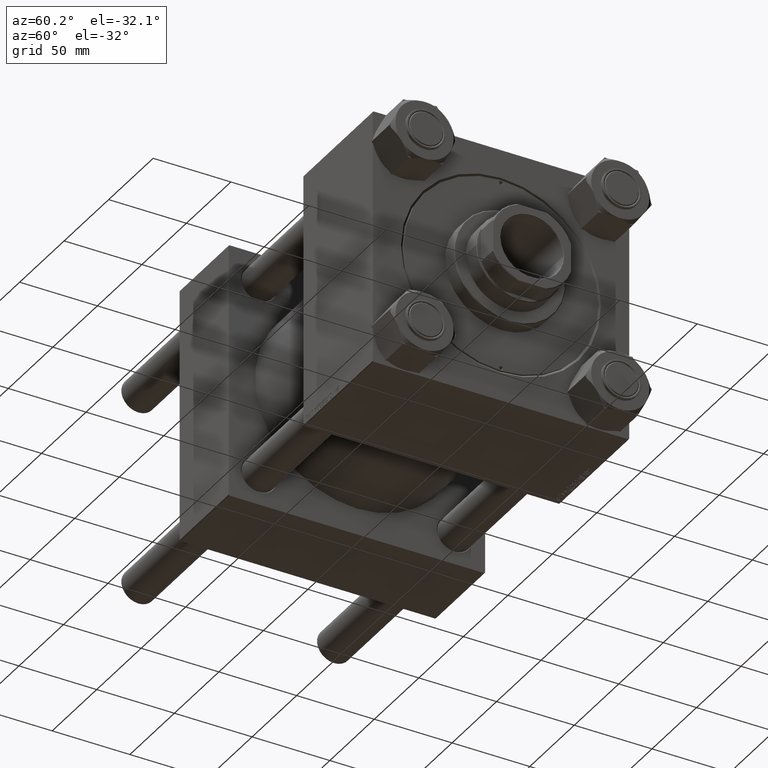
[diagram: clean part render]
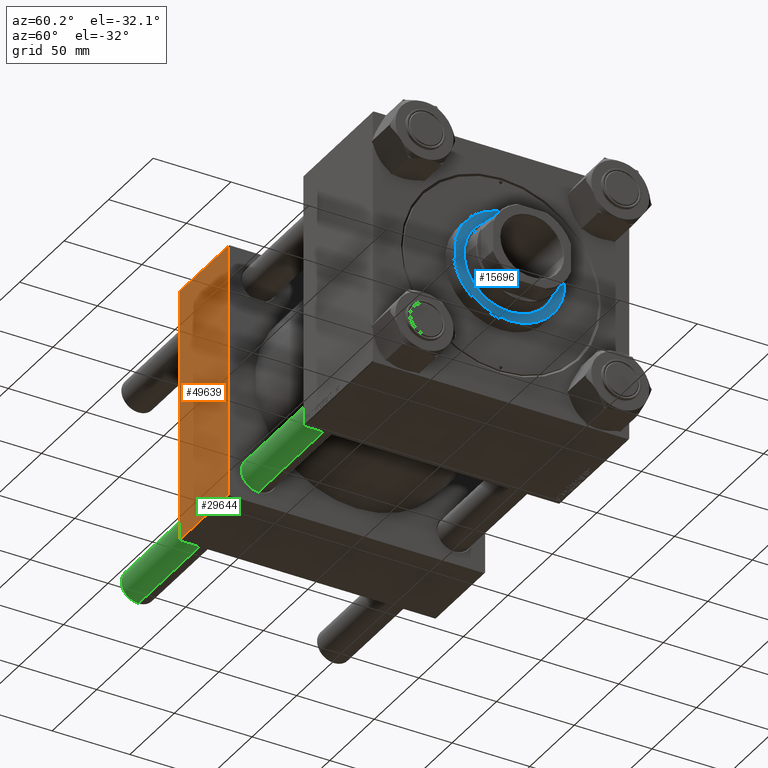
[diagram: same view with three faces highlighted in distinct colors, each labeled with its STEP entity id]
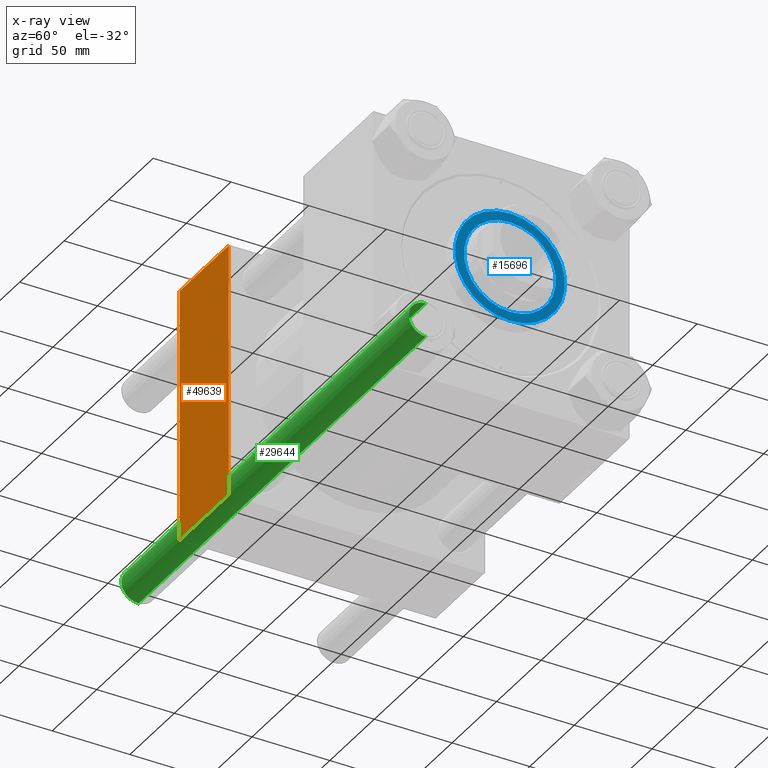
[diagram: x-ray of the same camera — body ghosted, the three highlighted faces saturated]
A machine part, auxiliary view with three faces highlighted in distinct colors.
The next image is the same camera in x-ray (body ghosted, the three faces saturated) — at least one of them is partly hidden behind the body in this view.
Their STEP definitions:

[orange] entity #49639 — the highlighted planar face has unit normal (0, 1, -0).
#900 = EDGE_CURVE ( 'NONE', #41479, #36332, #29673, .T. ) ;
#3467 = DIRECTION ( 'NONE',  ( 0.000000000000000000, -1.682156097916903588E-16, -1.000000000000000000 ) ) ;
#4514 = VECTOR ( 'NONE', #45912, 1000.000000000000000 ) ;
#6344 = VECTOR ( 'NONE', #3467, 1000.000000000000000 ) ;
#7146 = EDGE_CURVE ( 'NONE', #36332, #40666, #29185, .T. ) ;
#7786 = ORIENTED_EDGE ( 'NONE', *, *, #14385, .T. ) ;
#7991 = VECTOR ( 'NONE', #10289, 1000.000000000000000 ) ;
#8212 = VERTEX_POINT ( 'NONE', #45058 ) ;
#10289 = DIRECTION ( 'NONE',  ( -1.000000000000000000, 0.000000000000000000, 0.000000000000000000 ) ) ;
#10485 = FACE_OUTER_BOUND ( 'NONE', #26380, .T. ) ;
#10732 = DIRECTION ( 'NONE',  ( 0.000000000000000000, 1.682156097916903588E-16, 1.000000000000000000 ) ) ;
#13221 = ORIENTED_EDGE ( 'NONE', *, *, #24376, .F. ) ;
#14385 = EDGE_CURVE ( 'NONE', #40666, #8212, #37732, .T. ) ;
#14558 = CARTESIAN_POINT ( 'NONE',  ( 55.00000000000000000, -82.49999999999997158, 82.50000000000001421 ) ) ;
#14942 = ORIENTED_EDGE ( 'NONE', *, *, #7146, .T. ) ;
#16197 = CARTESIAN_POINT ( 'NONE',  ( 55.00000000000000000, -82.49999999999997158, 82.00000000000001421 ) ) ;
#18486 = LINE ( 'NONE', #30749, #6344 ) ;
#24376 = EDGE_CURVE ( 'NONE', #41479, #8212, #18486, .T. ) ;
#25576 = AXIS2_PLACEMENT_3D ( 'NONE', #14558, #46442, #10732 ) ;
#26380 = EDGE_LOOP ( 'NONE', ( #14942, #7786, #13221, #38951 ) ) ;
#26643 = CARTESIAN_POINT ( 'NONE',  ( 0.000000000000000000, -82.49999999999997158, 82.00000000000001421 ) ) ;
#29185 = LINE ( 'NONE', #32269, #44962 ) ;
#29673 = LINE ( 'NONE', #45234, #7991 ) ;
#30348 = CARTESIAN_POINT ( 'NONE',  ( 55.00000000000000000, -82.50000000000000000, -81.99999999999998579 ) ) ;
#30749 = CARTESIAN_POINT ( 'NONE',  ( 55.00000000000000000, -82.49999999999997158, 82.50000000000001421 ) ) ;
#32269 = CARTESIAN_POINT ( 'NONE',  ( 0.000000000000000000, -82.49999999999997158, 82.50000000000001421 ) ) ;
#36332 = VERTEX_POINT ( 'NONE', #26643 ) ;
#36586 = DIRECTION ( 'NONE',  ( 0.000000000000000000, -1.682156097916903588E-16, -1.000000000000000000 ) ) ;
#37732 = LINE ( 'NONE', #30348, #4514 ) ;
#38951 = ORIENTED_EDGE ( 'NONE', *, *, #900, .T. ) ;
#40666 = VERTEX_POINT ( 'NONE', #47842 ) ;
#41479 = VERTEX_POINT ( 'NONE', #16197 ) ;
#44962 = VECTOR ( 'NONE', #36586, 1000.000000000000000 ) ;
#45058 = CARTESIAN_POINT ( 'NONE',  ( 55.00000000000000000, -82.50000000000000000, -81.99999999999998579 ) ) ;
#45234 = CARTESIAN_POINT ( 'NONE',  ( 55.00000000000000000, -82.49999999999997158, 82.00000000000001421 ) ) ;
#45912 = DIRECTION ( 'NONE',  ( 1.000000000000000000, 0.000000000000000000, 0.000000000000000000 ) ) ;
#46195 = PLANE ( 'NONE',  #25576 ) ;
#46442 = DIRECTION ( 'NONE',  ( 0.000000000000000000, 1.000000000000000000, -1.682156097916903588E-16 ) ) ;
#47842 = CARTESIAN_POINT ( 'NONE',  ( 0.000000000000000000, -82.50000000000000000, -81.99999999999998579 ) ) ;
#49639 = ADVANCED_FACE ( 'NONE', ( #10485 ), #46195, .F. ) ;

[blue] entity #15696 — the highlighted planar face has unit normal (1, 0, -0).
#502 = EDGE_CURVE ( 'NONE', #49325, #30144, #620, .T. ) ;
#620 = CIRCLE ( 'NONE', #42973, 35.50000000000000711 ) ;
#730 = CARTESIAN_POINT ( 'NONE',  ( -29.50000000000000355, 3.612708057484692393E-15, 38.69999999999999574 ) ) ;
#2428 = DIRECTION ( 'NONE',  ( 1.000000000000000000, 0.000000000000000000, 0.000000000000000000 ) ) ;
#5099 = CIRCLE ( 'NONE', #37658, 29.50000000000000355 ) ;
#6126 = FACE_BOUND ( 'NONE', #17995, .T. ) ;
#6727 = CARTESIAN_POINT ( 'NONE',  ( -35.50000000000000711, 0.000000000000000000, 38.69999999999999574 ) ) ;
#8206 = EDGE_LOOP ( 'NONE', ( #41660, #38160 ) ) ;
#8227 = EDGE_CURVE ( 'NONE', #23389, #27684, #5099, .T. ) ;
#10312 = DIRECTION ( 'NONE',  ( 1.000000000000000000, 0.000000000000000000, 0.000000000000000000 ) ) ;
#11397 = CARTESIAN_POINT ( 'NONE',  ( 35.50000000000000711, 4.378112306951787069E-15, 38.69999999999999574 ) ) ;
#14370 = ORIENTED_EDGE ( 'NONE', *, *, #42723, .F. ) ;
#15696 = ADVANCED_FACE ( 'NONE', ( #6126, #29839 ), #21150, .T. ) ;
#15792 = CARTESIAN_POINT ( 'NONE',  ( 29.50000000000000355, 0.000000000000000000, 38.69999999999999574 ) ) ;
#16259 = AXIS2_PLACEMENT_3D ( 'NONE', #33523, #45259, #10312 ) ;
#17083 = DIRECTION ( 'NONE',  ( 0.000000000000000000, 0.000000000000000000, 1.000000000000000000 ) ) ;
#17991 = DIRECTION ( 'NONE',  ( 0.000000000000000000, 0.000000000000000000, 1.000000000000000000 ) ) ;
#17995 = EDGE_LOOP ( 'NONE', ( #28646, #14370 ) ) ;
#18650 = DIRECTION ( 'NONE',  ( 1.000000000000000000, 0.000000000000000000, 0.000000000000000000 ) ) ;
#21150 = PLANE ( 'NONE',  #45249 ) ;
#23389 = VERTEX_POINT ( 'NONE', #15792 ) ;
#23607 = CIRCLE ( 'NONE', #16259, 35.50000000000000711 ) ;
#24892 = DIRECTION ( 'NONE',  ( 0.000000000000000000, 0.000000000000000000, 1.000000000000000000 ) ) ;
#27684 = VERTEX_POINT ( 'NONE', #730 ) ;
#28646 = ORIENTED_EDGE ( 'NONE', *, *, #8227, .F. ) ;
#29839 = FACE_OUTER_BOUND ( 'NONE', #8206, .T. ) ;
#30144 = VERTEX_POINT ( 'NONE', #11397 ) ;
#33523 = CARTESIAN_POINT ( 'NONE',  ( 0.000000000000000000, 0.000000000000000000, 38.69999999999999574 ) ) ;
#35627 = EDGE_CURVE ( 'NONE', #30144, #49325, #23607, .T. ) ;
#36650 = CARTESIAN_POINT ( 'NONE',  ( 0.000000000000000000, 0.000000000000000000, 38.69999999999999574 ) ) ;
#37229 = CARTESIAN_POINT ( 'NONE',  ( 0.000000000000000000, 0.000000000000000000, 38.69999999999999574 ) ) ;
#37479 = DIRECTION ( 'NONE',  ( 1.000000000000000000, 0.000000000000000000, -0.000000000000000000 ) ) ;
#37646 = DIRECTION ( 'NONE',  ( 1.000000000000000000, 0.000000000000000000, 0.000000000000000000 ) ) ;
#37658 = AXIS2_PLACEMENT_3D ( 'NONE', #36650, #17991, #37646 ) ;
#38160 = ORIENTED_EDGE ( 'NONE', *, *, #35627, .T. ) ;
#40875 = CARTESIAN_POINT ( 'NONE',  ( 0.000000000000000000, 0.000000000000000000, 38.69999999999999574 ) ) ;
#40949 = AXIS2_PLACEMENT_3D ( 'NONE', #40875, #48808, #18650 ) ;
#41660 = ORIENTED_EDGE ( 'NONE', *, *, #502, .T. ) ;
#42723 = EDGE_CURVE ( 'NONE', #27684, #23389, #47487, .T. ) ;
#42973 = AXIS2_PLACEMENT_3D ( 'NONE', #45295, #24892, #2428 ) ;
#45249 = AXIS2_PLACEMENT_3D ( 'NONE', #37229, #17083, #37479 ) ;
#45259 = DIRECTION ( 'NONE',  ( 0.000000000000000000, 0.000000000000000000, 1.000000000000000000 ) ) ;
#45295 = CARTESIAN_POINT ( 'NONE',  ( 0.000000000000000000, 0.000000000000000000, 38.69999999999999574 ) ) ;
#47487 = CIRCLE ( 'NONE', #40949, 29.50000000000000355 ) ;
#48808 = DIRECTION ( 'NONE',  ( 0.000000000000000000, 0.000000000000000000, 1.000000000000000000 ) ) ;
#49325 = VERTEX_POINT ( 'NONE', #6727 ) ;

[green] entity #29644 — the highlighted cylindrical surface (edge-blend (fillet) strip) has radius 11 mm, axis along (-1, 0, 0).
#792 = DIRECTION ( 'NONE',  ( -0.000000000000000000, -0.000000000000000000, -1.000000000000000000 ) ) ;
#1861 = EDGE_LOOP ( 'NONE', ( #35760, #3143, #22484, #1965 ) ) ;
#1965 = ORIENTED_EDGE ( 'NONE', *, *, #27342, .F. ) ;
#3143 = ORIENTED_EDGE ( 'NONE', *, *, #33461, .T. ) ;
#7252 = CARTESIAN_POINT ( 'NONE',  ( 11.00000000000000000, 1.347111479062088405E-15, 324.0000000000000000 ) ) ;
#8137 = CARTESIAN_POINT ( 'NONE',  ( 11.00000000000000000, 1.347111479062088405E-15, 323.5000000000000000 ) ) ;
#8692 = CIRCLE ( 'NONE', #43716, 11.00000000000000000 ) ;
#9257 = EDGE_CURVE ( 'NONE', #24760, #49655, #35270, .T. ) ;
#10790 = CARTESIAN_POINT ( 'NONE',  ( 11.00000000000000000, 1.347111479062088405E-15, 0.5000000000000559552 ) ) ;
#11476 = CARTESIAN_POINT ( 'NONE',  ( -11.00000000000000000, 0.000000000000000000, 0.5000000000000559552 ) ) ;
#14157 = CARTESIAN_POINT ( 'NONE',  ( 0.000000000000000000, 0.000000000000000000, 323.5000000000000000 ) ) ;
#18126 = AXIS2_PLACEMENT_3D ( 'NONE', #24604, #32531, #21015 ) ;
#18213 = DIRECTION ( 'NONE',  ( 0.000000000000000000, 0.000000000000000000, -1.000000000000000000 ) ) ;
#20912 = CARTESIAN_POINT ( 'NONE',  ( -11.00000000000000000, 0.000000000000000000, 324.0000000000000000 ) ) ;
#21015 = DIRECTION ( 'NONE',  ( 1.000000000000000000, 0.000000000000000000, 0.000000000000000000 ) ) ;
#21841 = EDGE_CURVE ( 'NONE', #46777, #44905, #8692, .T. ) ;
#22484 = ORIENTED_EDGE ( 'NONE', *, *, #9257, .T. ) ;
#24499 = CARTESIAN_POINT ( 'NONE',  ( 0.000000000000000000, 0.000000000000000000, 324.0000000000000000 ) ) ;
#24604 = CARTESIAN_POINT ( 'NONE',  ( 0.000000000000000000, 0.000000000000000000, 0.5000000000000559552 ) ) ;
#24760 = VERTEX_POINT ( 'NONE', #10790 ) ;
#26637 = LINE ( 'NONE', #7252, #40775 ) ;
#26779 = VECTOR ( 'NONE', #792, 1000.000000000000000 ) ;
#27342 = EDGE_CURVE ( 'NONE', #46777, #49655, #32675, .T. ) ;
#28347 = DIRECTION ( 'NONE',  ( -0.000000000000000000, -0.000000000000000000, -1.000000000000000000 ) ) ;
#28788 = CARTESIAN_POINT ( 'NONE',  ( -11.00000000000000000, 0.000000000000000000, 323.5000000000000000 ) ) ;
#29644 = ADVANCED_FACE ( 'NONE', ( #39819 ), #32183, .T. ) ;
#32183 = CYLINDRICAL_SURFACE ( 'NONE', #47248, 11.00000000000000000 ) ;
#32531 = DIRECTION ( 'NONE',  ( -0.000000000000000000, -0.000000000000000000, 1.000000000000000000 ) ) ;
#32675 = LINE ( 'NONE', #20912, #26779 ) ;
#33461 = EDGE_CURVE ( 'NONE', #44905, #24760, #26637, .T. ) ;
#33932 = DIRECTION ( 'NONE',  ( -1.000000000000000000, 0.000000000000000000, 0.000000000000000000 ) ) ;
#35270 = CIRCLE ( 'NONE', #18126, 11.00000000000000000 ) ;
#35760 = ORIENTED_EDGE ( 'NONE', *, *, #21841, .T. ) ;
#38352 = DIRECTION ( 'NONE',  ( -0.000000000000000000, -0.000000000000000000, -1.000000000000000000 ) ) ;
#38371 = DIRECTION ( 'NONE',  ( 1.000000000000000000, 0.000000000000000000, 0.000000000000000000 ) ) ;
#39819 = FACE_OUTER_BOUND ( 'NONE', #1861, .T. ) ;
#40775 = VECTOR ( 'NONE', #38352, 1000.000000000000000 ) ;
#43716 = AXIS2_PLACEMENT_3D ( 'NONE', #14157, #18213, #38371 ) ;
#44905 = VERTEX_POINT ( 'NONE', #8137 ) ;
#46777 = VERTEX_POINT ( 'NONE', #28788 ) ;
#47248 = AXIS2_PLACEMENT_3D ( 'NONE', #24499, #28347, #33932 ) ;
#49655 = VERTEX_POINT ( 'NONE', #11476 ) ;